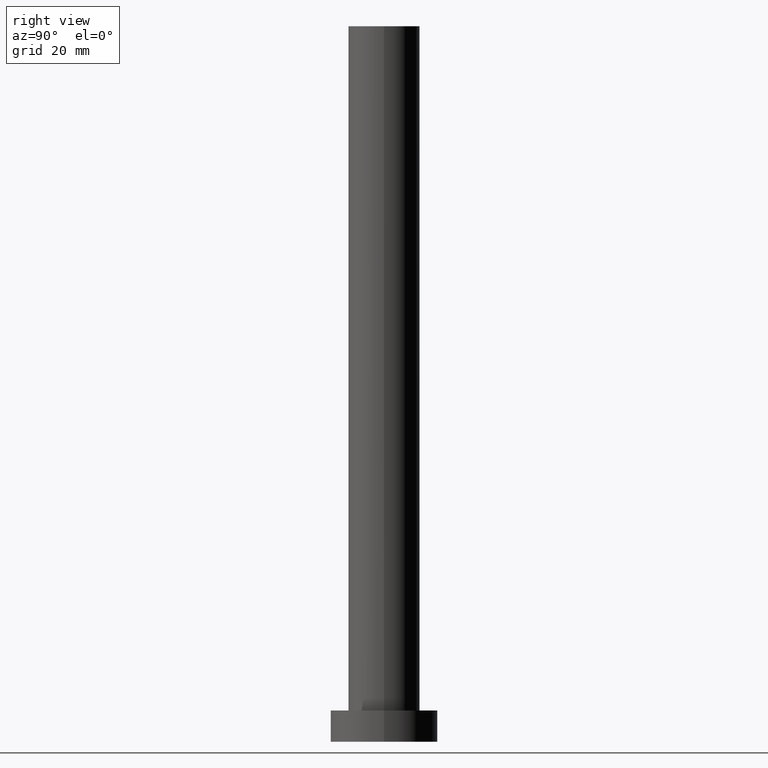
[diagram: clean part render]
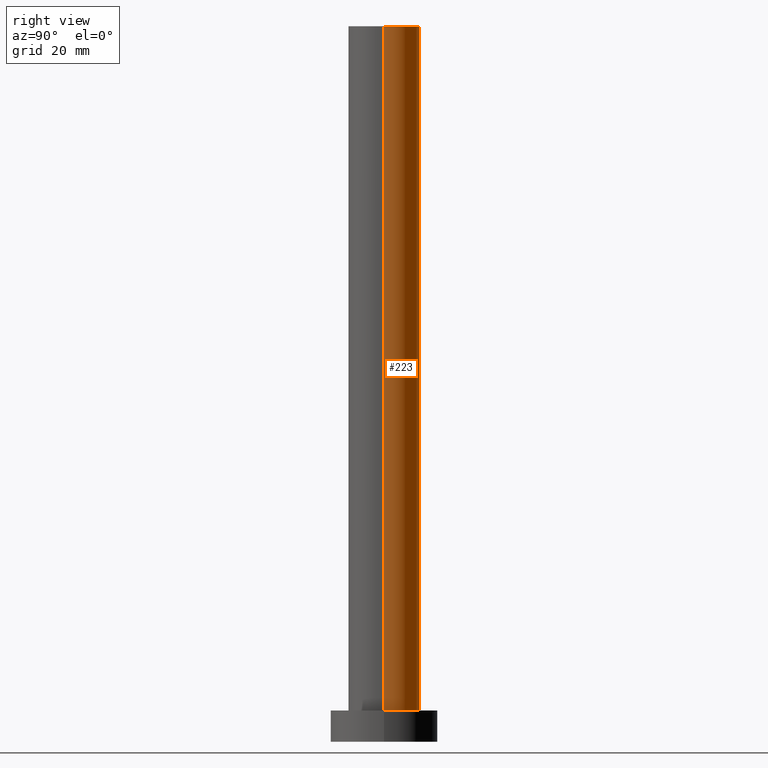
[diagram: same view with one face highlighted and labeled with its STEP entity id]
A machine part, right view. The second image highlights one B-rep face of the part: STEP entity #223.
In plain terms, the highlighted cylindrical surface (edge-blend (fillet) strip) has radius 8 mm, axis along (-0, -0, -1).
Its self-contained STEP definition (entity closure, byte-faithful):
#13 = EDGE_CURVE ( 'NONE', #111, #31, #62, .T. ) ;
#15 = AXIS2_PLACEMENT_3D ( 'NONE', #168, #246, #68 ) ;
#18 = DIRECTION ( 'NONE',  ( 1.000000000000000000, 0.000000000000000000, 0.000000000000000000 ) ) ;
#27 = EDGE_CURVE ( 'NONE', #183, #31, #48, .T. ) ;
#31 = VERTEX_POINT ( 'NONE', #39 ) ;
#33 = VECTOR ( 'NONE', #216, 1000.000000000000000 ) ;
#39 = CARTESIAN_POINT ( 'NONE',  ( -8.000000000000000000, 0.000000000000000000, 7.000000000000000000 ) ) ;
#48 = LINE ( 'NONE', #78, #106 ) ;
#51 = VERTEX_POINT ( 'NONE', #77 ) ;
#58 = DIRECTION ( 'NONE',  ( 0.000000000000000000, 0.000000000000000000, 1.000000000000000000 ) ) ;
#62 = CIRCLE ( 'NONE', #15, 8.000000000000000000 ) ;
#68 = DIRECTION ( 'NONE',  ( 1.000000000000000000, 0.000000000000000000, 0.000000000000000000 ) ) ;
#69 = EDGE_LOOP ( 'NONE', ( #203, #70, #248, #87 ) ) ;
#70 = ORIENTED_EDGE ( 'NONE', *, *, #187, .T. ) ;
#72 = DIRECTION ( 'NONE',  ( -0.000000000000000000, -0.000000000000000000, -1.000000000000000000 ) ) ;
#77 = CARTESIAN_POINT ( 'NONE',  ( 8.000000000000000000, 9.797174393178825657E-16, 160.0000000000000000 ) ) ;
#78 = CARTESIAN_POINT ( 'NONE',  ( -8.000000000000000000, 0.000000000000000000, 160.0000000000000000 ) ) ;
#87 = ORIENTED_EDGE ( 'NONE', *, *, #27, .F. ) ;
#102 = CIRCLE ( 'NONE', #233, 8.000000000000000000 ) ;
#106 = VECTOR ( 'NONE', #120, 1000.000000000000000 ) ;
#111 = VERTEX_POINT ( 'NONE', #174 ) ;
#118 = CARTESIAN_POINT ( 'NONE',  ( 0.000000000000000000, 0.000000000000000000, 160.0000000000000000 ) ) ;
#120 = DIRECTION ( 'NONE',  ( -0.000000000000000000, -0.000000000000000000, -1.000000000000000000 ) ) ;
#154 = DIRECTION ( 'NONE',  ( -1.000000000000000000, 0.000000000000000000, 0.000000000000000000 ) ) ;
#157 = FACE_OUTER_BOUND ( 'NONE', #69, .T. ) ;
#158 = CARTESIAN_POINT ( 'NONE',  ( -8.000000000000000000, 0.000000000000000000, 160.0000000000000000 ) ) ;
#166 = AXIS2_PLACEMENT_3D ( 'NONE', #118, #72, #154 ) ;
#168 = CARTESIAN_POINT ( 'NONE',  ( 0.000000000000000000, 0.000000000000000000, 7.000000000000000000 ) ) ;
#174 = CARTESIAN_POINT ( 'NONE',  ( 8.000000000000000000, 9.797174393178825657E-16, 7.000000000000000000 ) ) ;
#176 = CARTESIAN_POINT ( 'NONE',  ( 0.000000000000000000, 0.000000000000000000, 160.0000000000000000 ) ) ;
#183 = VERTEX_POINT ( 'NONE', #158 ) ;
#187 = EDGE_CURVE ( 'NONE', #51, #111, #217, .T. ) ;
#191 = CARTESIAN_POINT ( 'NONE',  ( 8.000000000000000000, 9.797174393178825657E-16, 160.0000000000000000 ) ) ;
#192 = EDGE_CURVE ( 'NONE', #51, #183, #102, .T. ) ;
#203 = ORIENTED_EDGE ( 'NONE', *, *, #192, .F. ) ;
#216 = DIRECTION ( 'NONE',  ( -0.000000000000000000, -0.000000000000000000, -1.000000000000000000 ) ) ;
#217 = LINE ( 'NONE', #191, #33 ) ;
#223 = ADVANCED_FACE ( 'NONE', ( #157 ), #236, .T. ) ;
#233 = AXIS2_PLACEMENT_3D ( 'NONE', #176, #58, #18 ) ;
#236 = CYLINDRICAL_SURFACE ( 'NONE', #166, 8.000000000000000000 ) ;
#246 = DIRECTION ( 'NONE',  ( 0.000000000000000000, 0.000000000000000000, 1.000000000000000000 ) ) ;
#248 = ORIENTED_EDGE ( 'NONE', *, *, #13, .T. ) ;